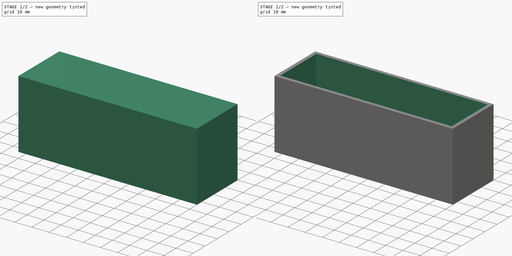
[diagram: build sequence overview — one tinted view per stage of 2, left to right]
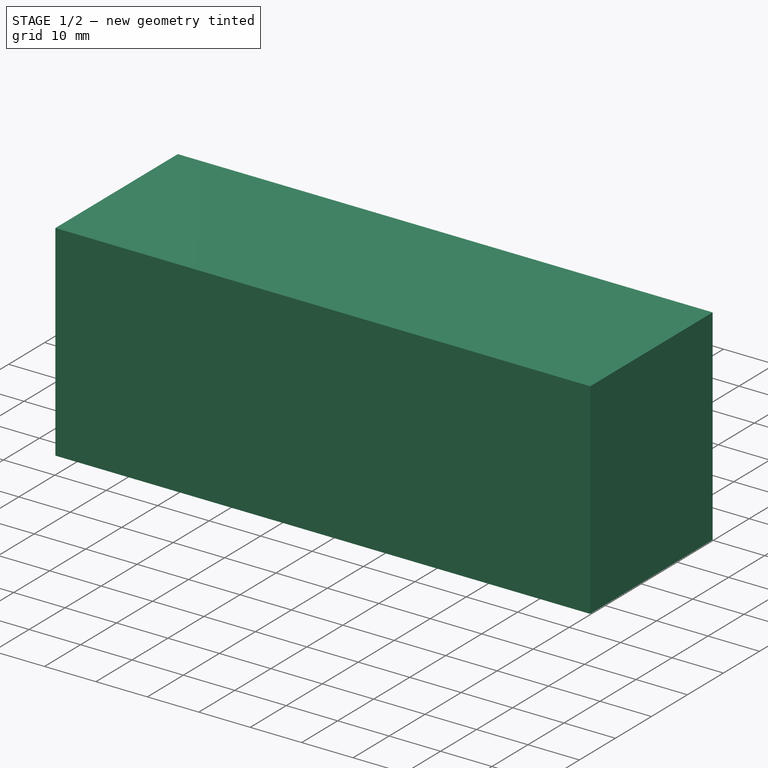
[diagram: stage 1 of 2 — iso view after this stage's code; geometry added in this stage tinted green]
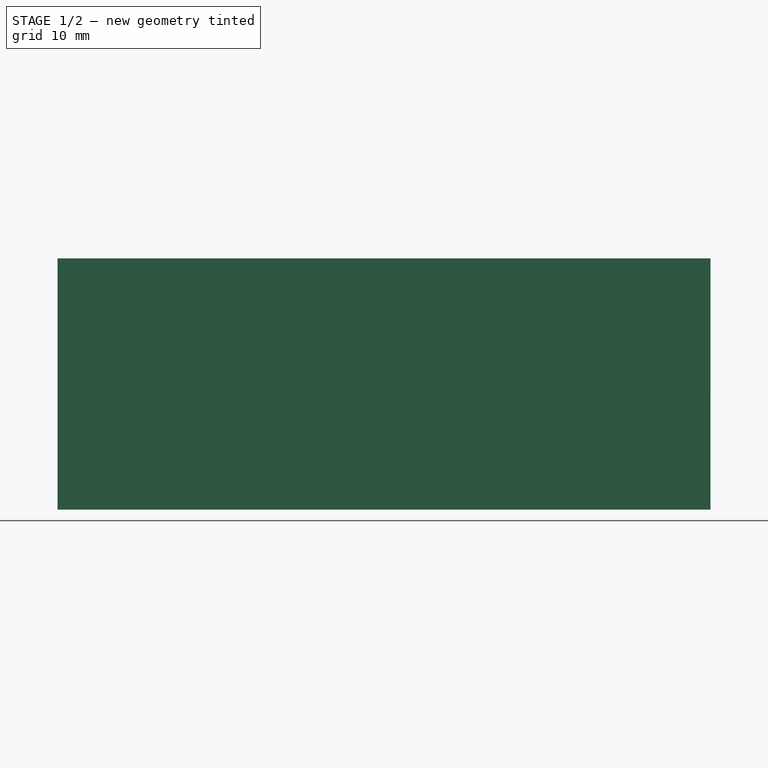
[diagram: stage 1 of 2 — front view after this stage's code; geometry added in this stage tinted green]
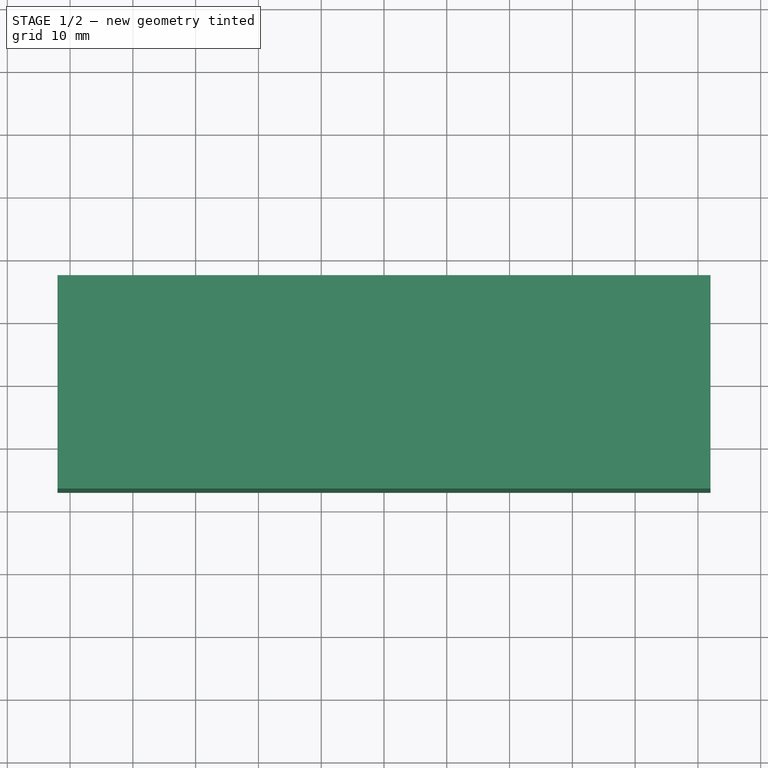
[diagram: stage 1 of 2 — top view after this stage's code; geometry added in this stage tinted green]
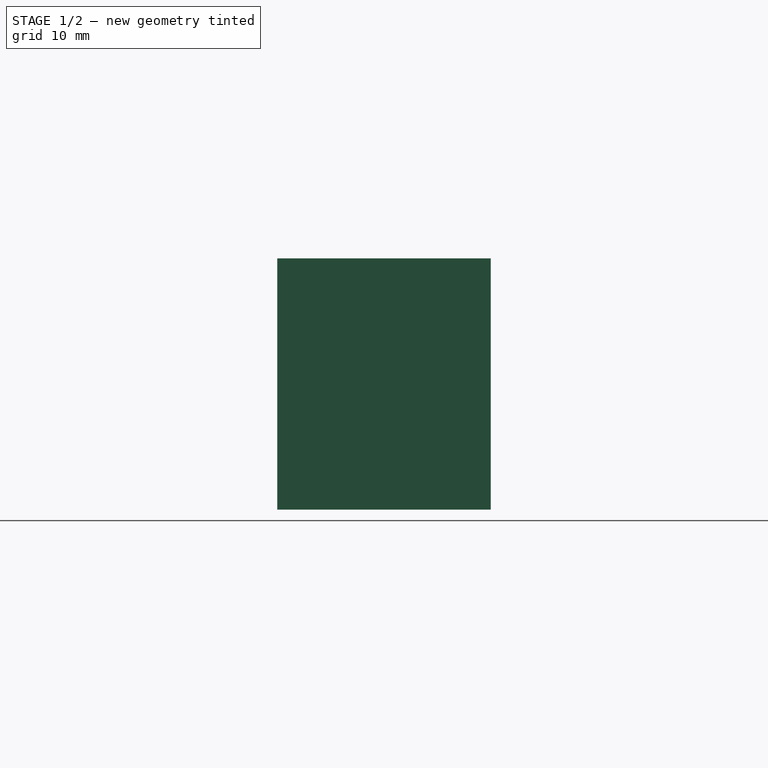
[diagram: stage 1 of 2 — right view after this stage's code; geometry added in this stage tinted green]
FCSTD DOCUMENT  (FreeCAD 1.0R39319 (Git))
Label: JHR_Case_V1.1
License: All rights reserved
LicenseURL: https://en.wikipedia.org/wiki/All_rights_reserved
objects: Sketcher::SketchObject×3, PartDesign::Pad×1, PartDesign::Thickness×1, PartDesign::Body×1
note: 13 computed .brp shape members not serialized (recipe doc carries the construction recipe); baked Part::Feature solids carry a one-line shape summary decoded from their .brp

FEATURE [Sketcher::SketchObject] Sketch  label="Base_layout"
  ArcFitTolerance = 1e-06
  AttachmentSupport = -> [XY_Plane]
  FullyConstrained = true
  MakeInternals = false
  MapMode = 5
  sketch-geometry (4):
    g0: LineSegment StartX=-52 StartY=17 StartZ=0 EndX=-52 EndY=-17 EndZ=0
    g1: LineSegment StartX=-52 StartY=-17 StartZ=0 EndX=52 EndY=-17 EndZ=0
    g2: LineSegment StartX=52 StartY=-17 StartZ=0 EndX=52 EndY=17 EndZ=0
    g3: LineSegment StartX=52 StartY=17 StartZ=0 EndX=-52 EndY=17 EndZ=0
  constraints (12):
    c: Coincident(g0,g1)
    c: Coincident(g1,g2)
    c: Coincident(g2,g3)
    c: Coincident(g3,g0)
    c: Vertical(g0)
    c: Vertical(g2)
    c: Horizontal(g1)
    c: Horizontal(g3)
    c: Distance(g0,g2) = 104
    c: Distance(g1,g3) = 34
    c: DistanceY(g-1,g0) = 17
    c: DistanceX(g0,g-1) = 52
FEATURE [PartDesign::Pad] Pad
  Direction = (0,0,1)
  Length = 40
  Length2 = 10
  Profile = -> Sketch
  ReferenceAxis = -> Sketch [N_Axis]
  Refine = true
  Suppressed = false
  Type = 0
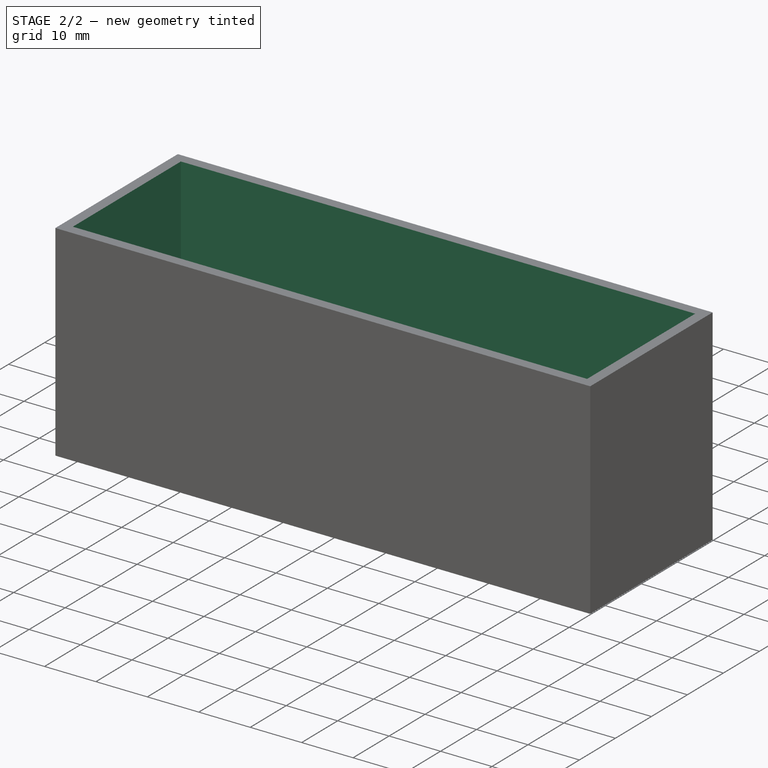
[diagram: stage 2 of 2 — iso view after this stage's code; geometry added in this stage tinted green]
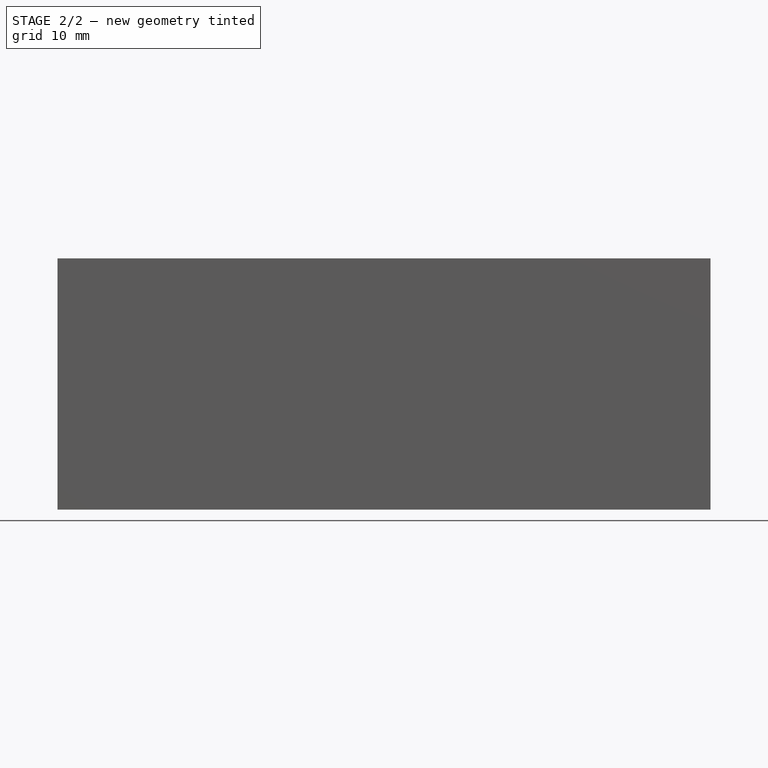
[diagram: stage 2 of 2 — front view after this stage's code; geometry added in this stage tinted green]
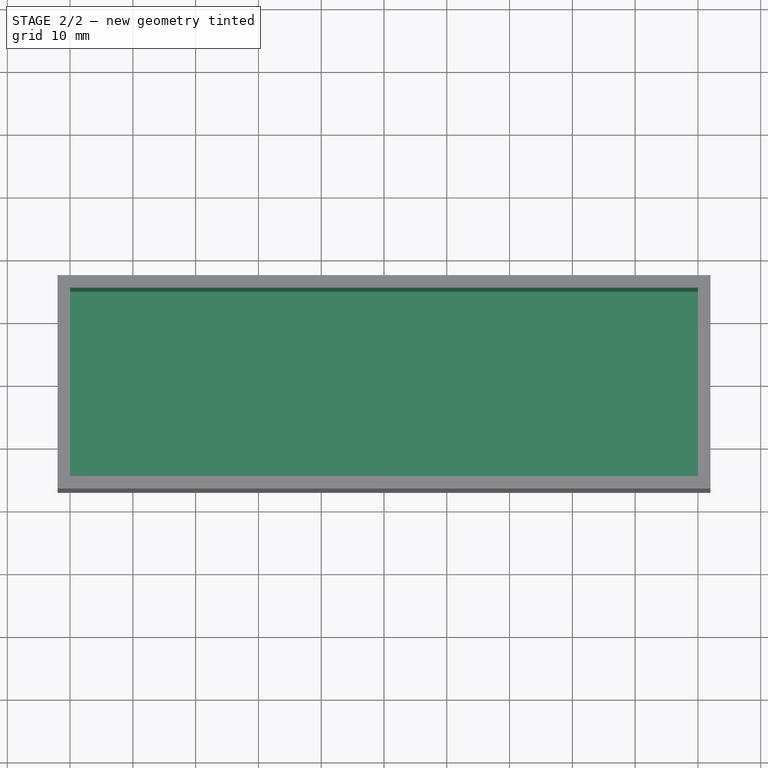
[diagram: stage 2 of 2 — top view after this stage's code; geometry added in this stage tinted green]
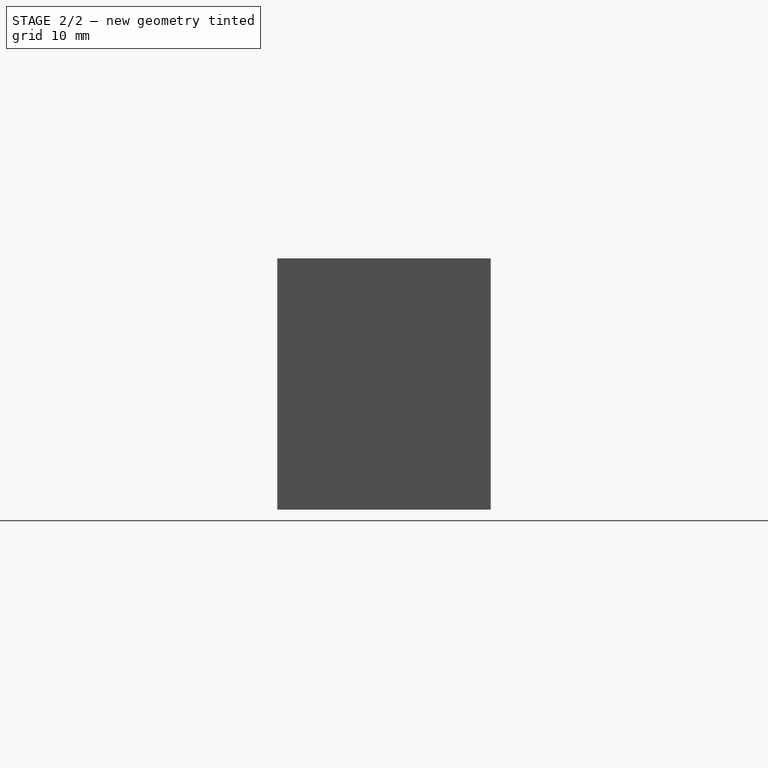
[diagram: stage 2 of 2 — right view after this stage's code; geometry added in this stage tinted green]
FEATURE [PartDesign::Thickness] Thickness  label="Walls"
  Base = -> Pad [Face6]
  BaseFeature = -> Pad
  Intersection = false
  Join = 0
  Mode = 0
  Refine = true
  Reversed = true
  SupportTransform = false
  Suppressed = false
  Value = 2
FEATURE [Sketcher::SketchObject] Sketch003  label="Holes_bottom"
  ArcFitTolerance = 1e-06
  AttachmentSupport = -> [Thickness]
  ExternalGeometry = -> [Thickness]
  FullyConstrained = true
  MakeInternals = false
  MapMode = 5
  Placement = pos=(0,0,2) rot=(0,0,1;0rad)
  sketch-geometry (8):
    g0: Circle CenterX=-47 CenterY=12 CenterZ=0 NormalX=0 NormalY=0 NormalZ=1 AngleXU=0 Radius=1.55
    g1: Circle CenterX=-47 CenterY=-12 CenterZ=0 NormalX=0 NormalY=0 NormalZ=1 AngleXU=0 Radius=1.55
    g2: Circle CenterX=0 CenterY=-12 CenterZ=0 NormalX=0 NormalY=0 NormalZ=1 AngleXU=0 Radius=1.55
    g3: Circle CenterX=0 CenterY=12 CenterZ=0 NormalX=0 NormalY=0 NormalZ=1 AngleXU=0 Radius=1.55
    g4: Circle CenterX=7 CenterY=12 CenterZ=0 NormalX=0 NormalY=0 NormalZ=1 AngleXU=0 Radius=1.55
    g5: Circle CenterX=7 CenterY=-12 CenterZ=0 NormalX=0 NormalY=0 NormalZ=1 AngleXU=0 Radius=1.55
    g6: Circle CenterX=36 CenterY=12 CenterZ=0 NormalX=0 NormalY=0 NormalZ=1 AngleXU=0 Radius=1.55
    g7: Circle CenterX=36 CenterY=-12 CenterZ=0 NormalX=0 NormalY=0 NormalZ=1 AngleXU=0 Radius=1.55
  constraints (24):
    c: Diameter(g0) = 3.1
    c: Diameter(g1) = 3.1
    c: Diameter(g2) = 3.1
    c: Diameter(g3) = 3.1
    c: Diameter(g4) = 3.1
    c: Diameter(g5) = 3.1
    c: Diameter(g6) = 3.1
    c: Diameter(g7) = 3.1
    c: DistanceX(g-3,g0) = 3
    c: DistanceY(g0,g-3) = 3
    c: DistanceY(g3,g0) = 0
    c: DistanceY(g3,g4) = 0
    c: DistanceY(g6,g4) = 0
    c: DistanceX(g-5,g1) = 3
    c: DistanceY(g1,g0) = 24
    c: DistanceY(g2,g3) = 24
    c: DistanceY(g5,g4) = 24
    c: DistanceY(g7,g6) = 24
    c: DistanceX(g1,g2) = 47
    c: DistanceX(g0,g3) = 47
    c: DistanceX(g3,g4) = 7
    c: DistanceX(g2,g5) = 7
    c: DistanceX(g4,g6) = 29
    c: DistanceX(g5,g7) = 29
FEATURE [Sketcher::SketchObject] Sketch006  label="Rings_bottom"
  ArcFitTolerance = 1e-06
  AttachmentSupport = -> [Thickness]
  ExternalGeometry = -> [Thickness]
  FullyConstrained = true
  MakeInternals = false
  MapMode = 5
  Placement = pos=(0,0,2) rot=(0,0,1;0rad)
  sketch-geometry (8):
    g0: Circle CenterX=-47 CenterY=12 CenterZ=0 NormalX=0 NormalY=0 NormalZ=1 AngleXU=0 Radius=2.25
    g1: Circle CenterX=0 CenterY=12 CenterZ=0 NormalX=0 NormalY=0 NormalZ=1 AngleXU=0 Radius=2.25
    g2: Circle CenterX=7 CenterY=12 CenterZ=0 NormalX=0 NormalY=0 NormalZ=1 AngleXU=0 Radius=2.25
    g3: Circle CenterX=36 CenterY=12 CenterZ=0 NormalX=0 NormalY=0 NormalZ=1 AngleXU=0 Radius=2.25
    g4: Circle CenterX=36 CenterY=-12 CenterZ=0 NormalX=0 NormalY=0 NormalZ=1 AngleXU=0 Radius=2.25
    g5: Circle CenterX=7 CenterY=-12 CenterZ=0 NormalX=0 NormalY=0 NormalZ=1 AngleXU=0 Radius=2.25
    g6: Circle CenterX=0 CenterY=-12 CenterZ=0 NormalX=0 NormalY=0 NormalZ=1 AngleXU=0 Radius=2.25
    g7: Circle CenterX=-47 CenterY=-12 CenterZ=0 NormalX=0 NormalY=0 NormalZ=1 AngleXU=0 Radius=2.25
  constraints (24):
    c: Diameter(g0) = 4.5
    c: DistanceX(g-3,g0) = 3
    c: DistanceY(g0,g-3) = 3
    c: Diameter(g1) = 4.5
    c: PointOnObject(g1,g-2)
    c: Diameter(g2) = 4.5
    c: Diameter(g3) = 4.5
    c: Diameter(g4) = 4.5
    c: Diameter(g5) = 4.5
    c: Diameter(g6) = 4.5
    c: PointOnObject(g6,g-2)
    c: Diameter(g7) = 4.5
    c: DistanceY(g7,g0) = 24
    c: DistanceX(g-3,g7) = 3
    c: DistanceX(g1,g2) = 7
    c: DistanceX(g2,g3) = 29
    c: DistanceX(g6,g5) = 7
    c: DistanceY(g6,g1) = 24
    c: DistanceY(g5,g2) = 24
    c: DistanceY(g4,g3) = 24
    c: DistanceY(g1,g-3) = 3
    c: DistanceY(g2,g-3) = 3
    c: DistanceY(g3,g-3) = 3
    c: DistanceX(g5,g4) = 29
FEATURE [PartDesign::Body] Body
  AllowCompound = false
  Group = -> [Sketch,Pad,Thickness,Sketch003,Sketch006]
  Origin = -> Origin
  Tip = -> Thickness
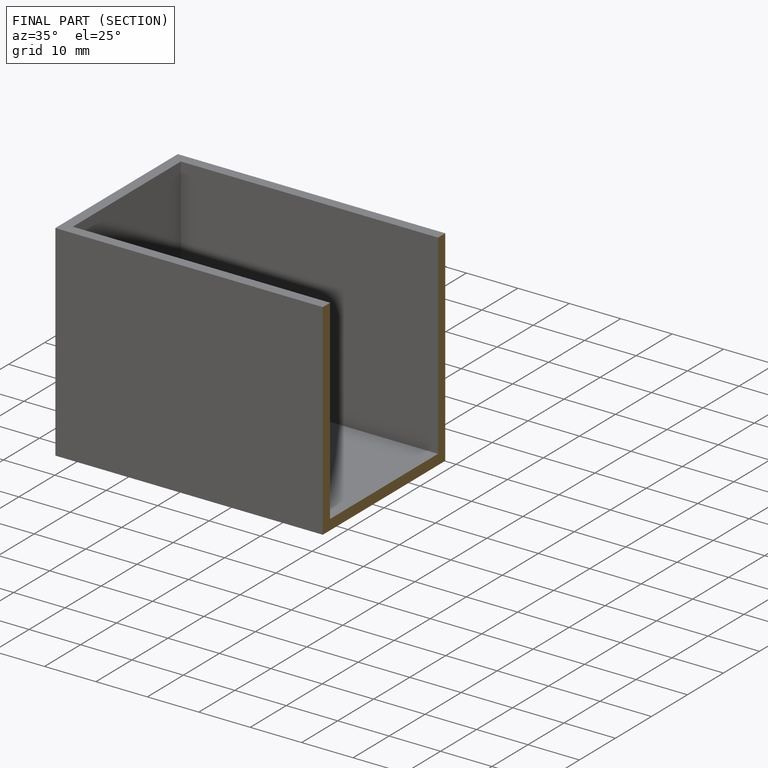
[diagram: finished part — half-section view (interior)]
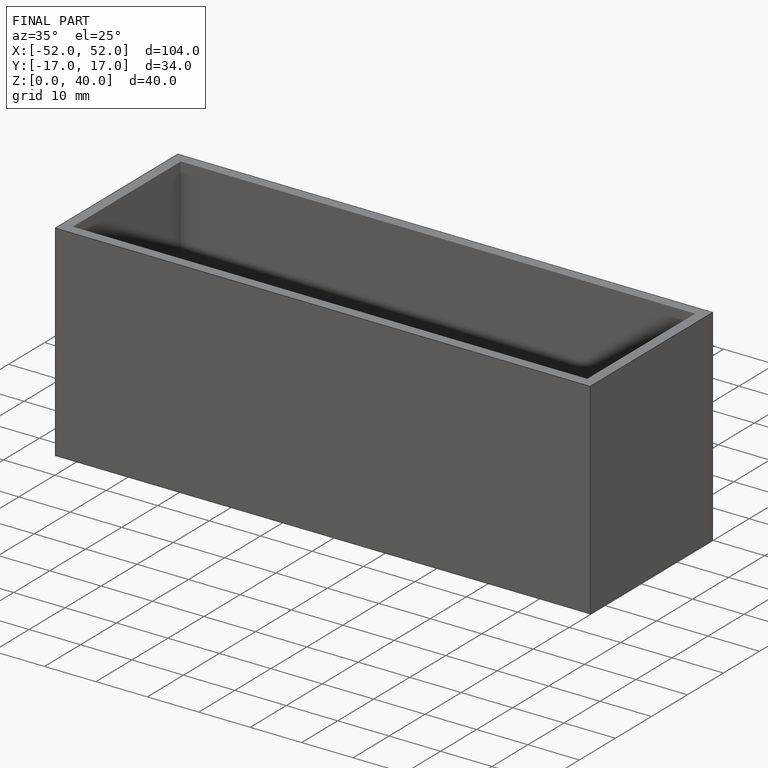
[diagram: finished part — iso view with bounding-box wireframe]
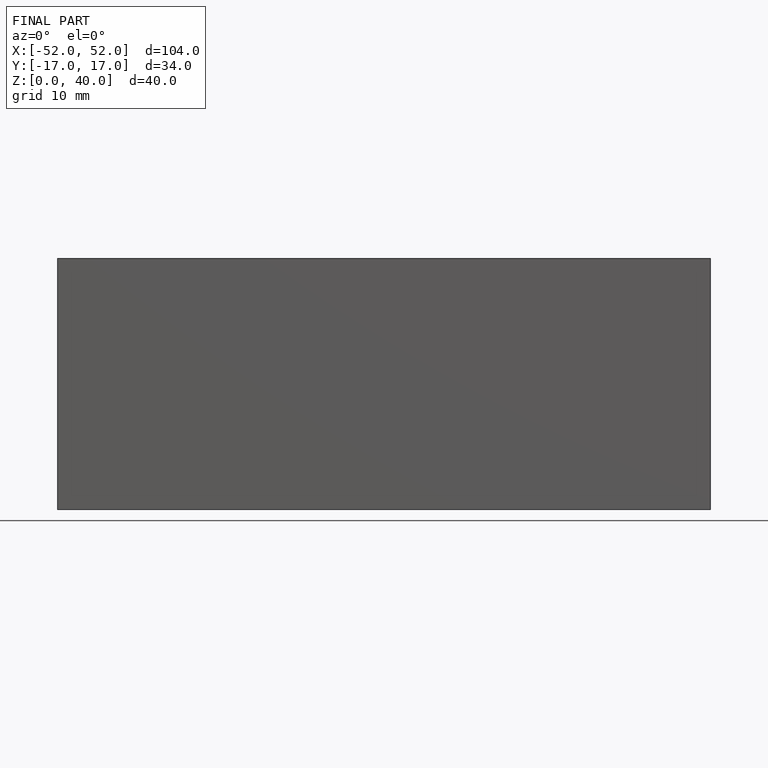
[diagram: finished part — front view with bounding-box wireframe]
